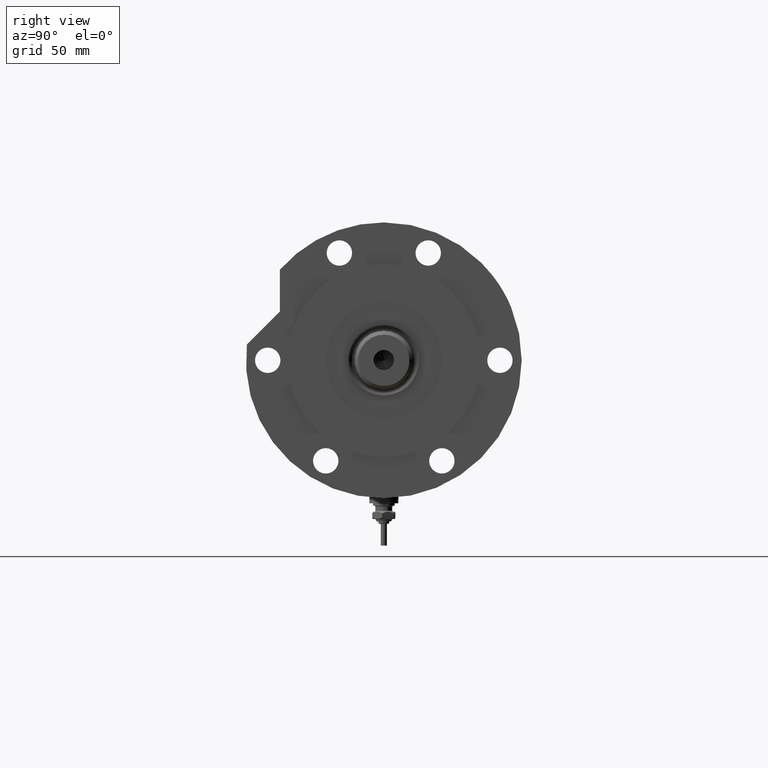
[diagram: clean part render]
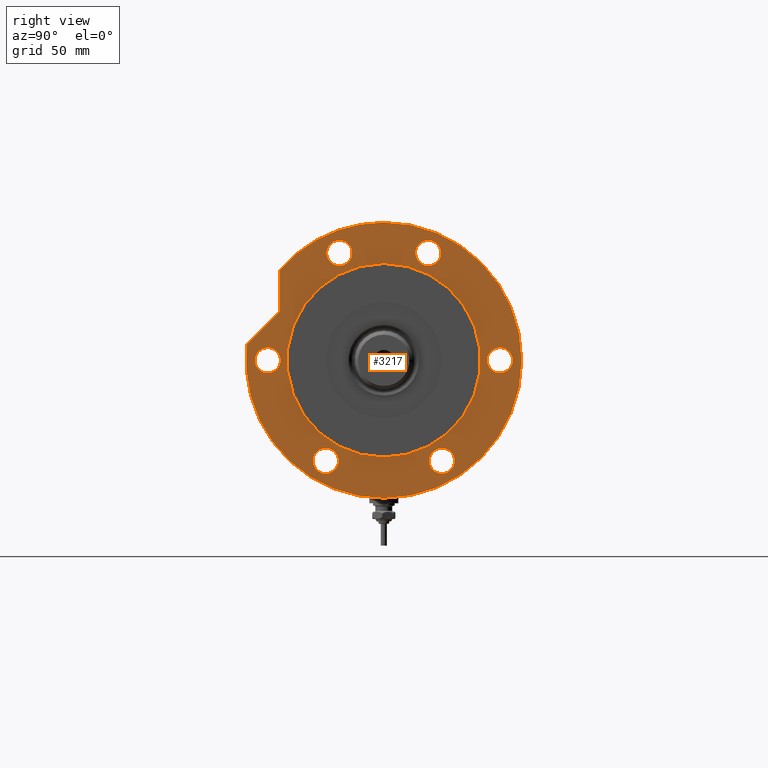
[diagram: same view with one face highlighted and labeled with its STEP entity id]
A machine part, right view. The second image highlights one B-rep face of the part: STEP entity #3217.
In plain terms, the highlighted planar face has unit normal (1, 0, -0).
Its self-contained STEP definition (entity closure, byte-faithful):
#89 = CARTESIAN_POINT ( 'NONE',  ( -36.31921938165294961, -24.00000000000018829, 19.00000000000000000 ) ) ;
#108 = CIRCLE ( 'NONE', #3038, 40.00000000000000000 ) ;
#134 = EDGE_CURVE ( 'NONE', #5050, #7023, #6805, .T. ) ;
#275 = EDGE_CURVE ( 'NONE', #4535, #4326, #2030, .T. ) ;
#392 = ORIENTED_EDGE ( 'NONE', *, *, #1581, .F. ) ;
#419 = FACE_BOUND ( 'NONE', #4949, .T. ) ;
#465 = AXIS2_PLACEMENT_3D ( 'NONE', #6807, #3348, #6289 ) ;
#471 = CARTESIAN_POINT ( 'NONE',  ( -41.56921938165310593, 23.99999999999990408, 19.00000000000000000 ) ) ;
#504 = ORIENTED_EDGE ( 'NONE', *, *, #1051, .F. ) ;
#518 = EDGE_LOOP ( 'NONE', ( #5814, #3171 ) ) ;
#558 = CARTESIAN_POINT ( 'NONE',  ( -46.81921938165294961, -24.00000000000018829, 19.00000000000000000 ) ) ;
#560 = EDGE_CURVE ( 'NONE', #2677, #7450, #2501, .T. ) ;
#617 = DIRECTION ( 'NONE',  ( 0.000000000000000000, 0.000000000000000000, 1.000000000000000000 ) ) ;
#618 = AXIS2_PLACEMENT_3D ( 'NONE', #4163, #6086, #2118 ) ;
#624 = DIRECTION ( 'NONE',  ( 0.000000000000000000, 0.000000000000000000, 1.000000000000000000 ) ) ;
#647 = VERTEX_POINT ( 'NONE', #2236 ) ;
#726 = AXIS2_PLACEMENT_3D ( 'NONE', #1288, #617, #3630 ) ;
#824 = AXIS2_PLACEMENT_3D ( 'NONE', #6491, #4614, #6950 ) ;
#859 = ORIENTED_EDGE ( 'NONE', *, *, #560, .F. ) ;
#873 = CARTESIAN_POINT ( 'NONE',  ( 44.34621756054168173, 18.36880475352450048, 19.00000000000000000 ) ) ;
#1025 = EDGE_CURVE ( 'NONE', #4508, #2624, #6690, .T. ) ;
#1051 = EDGE_CURVE ( 'NONE', #7450, #2630, #3133, .T. ) ;
#1157 = DIRECTION ( 'NONE',  ( 1.000000000000000000, 0.000000000000000000, 0.000000000000000000 ) ) ;
#1288 = CARTESIAN_POINT ( 'NONE',  ( 0.000000000000000000, 0.000000000000000000, 19.00000000000000000 ) ) ;
#1437 = CARTESIAN_POINT ( 'NONE',  ( 31.59476718220863845, 31.59476718220895108, 19.00000000000000000 ) ) ;
#1465 = CARTESIAN_POINT ( 'NONE',  ( 0.000000000000000000, 0.000000000000000000, 19.00000000000000000 ) ) ;
#1569 = DIRECTION ( 'NONE',  ( 0.000000000000000000, 0.000000000000000000, 1.000000000000000000 ) ) ;
#1581 = EDGE_CURVE ( 'NONE', #6376, #6830, #6105, .T. ) ;
#1630 = CARTESIAN_POINT ( 'NONE',  ( -41.56921938165310593, 23.99999999999990408, 19.00000000000000000 ) ) ;
#1641 = DIRECTION ( 'NONE',  ( 0.000000000000000000, 0.000000000000000000, 1.000000000000000000 ) ) ;
#1647 = VERTEX_POINT ( 'NONE', #1691 ) ;
#1660 = EDGE_LOOP ( 'NONE', ( #1986, #7138 ) ) ;
#1673 = VECTOR ( 'NONE', #5469, 999.9999999999998863 ) ;
#1691 = CARTESIAN_POINT ( 'NONE',  ( -36.31921938165311303, 23.99999999999990408, 19.00000000000000000 ) ) ;
#1714 = AXIS2_PLACEMENT_3D ( 'NONE', #5893, #5297, #5851 ) ;
#1729 = ORIENTED_EDGE ( 'NONE', *, *, #3983, .T. ) ;
#1732 = FACE_OUTER_BOUND ( 'NONE', #2256, .T. ) ;
#1782 = VERTEX_POINT ( 'NONE', #3225 ) ;
#1830 = CARTESIAN_POINT ( 'NONE',  ( -46.81921938165310593, 23.99999999999990408, 19.00000000000000000 ) ) ;
#1883 = CARTESIAN_POINT ( 'NONE',  ( 0.000000000000000000, 0.000000000000000000, 19.00000000000000000 ) ) ;
#1950 = CIRCLE ( 'NONE', #6844, 5.249999999999998224 ) ;
#1984 = CARTESIAN_POINT ( 'NONE',  ( 39.09621756054168173, 18.36880475352450048, 19.00000000000000000 ) ) ;
#1986 = ORIENTED_EDGE ( 'NONE', *, *, #7214, .F. ) ;
#2030 = CIRCLE ( 'NONE', #3011, 40.00000000000000000 ) ;
#2096 = EDGE_CURVE ( 'NONE', #1782, #2839, #5247, .T. ) ;
#2118 = DIRECTION ( 'NONE',  ( 1.000000000000000000, 0.000000000000000000, 0.000000000000000000 ) ) ;
#2131 = CARTESIAN_POINT ( 'NONE',  ( 6.569366352211361004, 56.62016801220598694, 19.00000000000000000 ) ) ;
#2141 = CARTESIAN_POINT ( 'NONE',  ( 0.000000000000000000, 0.000000000000000000, 19.00000000000000000 ) ) ;
#2197 = VERTEX_POINT ( 'NONE', #1830 ) ;
#2236 = CARTESIAN_POINT ( 'NONE',  ( 49.59621756054168173, 18.36880475352450048, 19.00000000000000000 ) ) ;
#2256 = EDGE_LOOP ( 'NONE', ( #504, #859, #6872, #1729, #7349 ) ) ;
#2261 = EDGE_CURVE ( 'NONE', #4326, #4535, #108, .T. ) ;
#2272 = DIRECTION ( 'NONE',  ( 0.000000000000000000, 0.000000000000000000, 1.000000000000000000 ) ) ;
#2283 = EDGE_LOOP ( 'NONE', ( #2967, #5335 ) ) ;
#2308 = CARTESIAN_POINT ( 'NONE',  ( -41.56921938165294961, -24.00000000000018829, 19.00000000000000000 ) ) ;
#2342 = DIRECTION ( 'NONE',  ( 1.000000000000000000, 0.000000000000000000, 0.000000000000000000 ) ) ;
#2397 = DIRECTION ( 'NONE',  ( 1.000000000000000000, 0.000000000000000000, 0.000000000000000000 ) ) ;
#2406 = CIRCLE ( 'NONE', #3148, 5.249999999999998224 ) ;
#2439 = AXIS2_PLACEMENT_3D ( 'NONE', #1630, #2272, #6974 ) ;
#2474 = DIRECTION ( 'NONE',  ( 0.000000000000000000, 0.000000000000000000, 1.000000000000000000 ) ) ;
#2501 = LINE ( 'NONE', #1437, #1673 ) ;
#2544 = DIRECTION ( 'NONE',  ( 1.000000000000000000, 0.000000000000000000, 0.000000000000000000 ) ) ;
#2624 = VERTEX_POINT ( 'NONE', #5524 ) ;
#2630 = VERTEX_POINT ( 'NONE', #4645 ) ;
#2636 = DIRECTION ( 'NONE',  ( 1.000000000000000000, 0.000000000000000000, 0.000000000000000000 ) ) ;
#2657 = CIRCLE ( 'NONE', #2785, 5.249999999999997335 ) ;
#2677 = VERTEX_POINT ( 'NONE', #2131 ) ;
#2699 = CARTESIAN_POINT ( 'NONE',  ( 44.34621756054168173, -18.36880475352450048, 19.00000000000000000 ) ) ;
#2701 = DIRECTION ( 'NONE',  ( 0.000000000000000000, 0.000000000000000000, 1.000000000000000000 ) ) ;
#2785 = AXIS2_PLACEMENT_3D ( 'NONE', #873, #7352, #6848 ) ;
#2787 = CARTESIAN_POINT ( 'NONE',  ( 44.34621756054168173, 18.36880475352450048, 19.00000000000000000 ) ) ;
#2822 = EDGE_CURVE ( 'NONE', #647, #6165, #2657, .T. ) ;
#2839 = VERTEX_POINT ( 'NONE', #5227 ) ;
#2967 = ORIENTED_EDGE ( 'NONE', *, *, #2096, .F. ) ;
#3011 = AXIS2_PLACEMENT_3D ( 'NONE', #4483, #1641, #6412 ) ;
#3038 = AXIS2_PLACEMENT_3D ( 'NONE', #1465, #4239, #3662 ) ;
#3130 = CARTESIAN_POINT ( 'NONE',  ( 0.000000000000000000, 48.00000000000000000, 19.00000000000000000 ) ) ;
#3132 = AXIS2_PLACEMENT_3D ( 'NONE', #2308, #4671, #1157 ) ;
#3133 = LINE ( 'NONE', #3719, #6219 ) ;
#3148 = AXIS2_PLACEMENT_3D ( 'NONE', #3130, #7361, #2544 ) ;
#3171 = ORIENTED_EDGE ( 'NONE', *, *, #3644, .F. ) ;
#3217 = ADVANCED_FACE ( 'NONE', ( #5691, #3945, #7403, #5146, #4576, #6870, #1732, #419 ), #4031, .T. ) ;
#3225 = CARTESIAN_POINT ( 'NONE',  ( -5.249999999999998224, 48.00000000000000000, 19.00000000000000000 ) ) ;
#3266 = AXIS2_PLACEMENT_3D ( 'NONE', #471, #624, #2342 ) ;
#3348 = DIRECTION ( 'NONE',  ( 0.000000000000000000, 0.000000000000000000, 1.000000000000000000 ) ) ;
#3409 = AXIS2_PLACEMENT_3D ( 'NONE', #2141, #6905, #4486 ) ;
#3487 = EDGE_LOOP ( 'NONE', ( #5246, #7378 ) ) ;
#3493 = ORIENTED_EDGE ( 'NONE', *, *, #2261, .F. ) ;
#3499 = CARTESIAN_POINT ( 'NONE',  ( 57.00000000000000000, 6.980486755139912911E-15, 19.00000000000000000 ) ) ;
#3630 = DIRECTION ( 'NONE',  ( 1.000000000000000000, 0.000000000000000000, 0.000000000000000000 ) ) ;
#3644 = EDGE_CURVE ( 'NONE', #1647, #2197, #5995, .T. ) ;
#3662 = DIRECTION ( 'NONE',  ( 1.000000000000000000, 0.000000000000000000, 0.000000000000000000 ) ) ;
#3669 = CARTESIAN_POINT ( 'NONE',  ( 20.20945616129993283, 42.98007820311755012, 19.00000000000000000 ) ) ;
#3719 = CARTESIAN_POINT ( 'NONE',  ( 0.000000000000000000, 42.98007820311755012, 19.00000000000000000 ) ) ;
#3773 = AXIS2_PLACEMENT_3D ( 'NONE', #2699, #3950, #6910 ) ;
#3807 = CARTESIAN_POINT ( 'NONE',  ( -57.00000000000000000, 0.000000000000000000, 19.00000000000000000 ) ) ;
#3901 = CIRCLE ( 'NONE', #5757, 57.00000000000000000 ) ;
#3918 = CIRCLE ( 'NONE', #618, 57.00000000000000000 ) ;
#3945 = FACE_BOUND ( 'NONE', #1660, .T. ) ;
#3950 = DIRECTION ( 'NONE',  ( 0.000000000000000000, 0.000000000000000000, 1.000000000000000000 ) ) ;
#3983 = EDGE_CURVE ( 'NONE', #6843, #4684, #3901, .T. ) ;
#4031 = PLANE ( 'NONE',  #3409 ) ;
#4038 = EDGE_CURVE ( 'NONE', #2677, #6843, #7210, .T. ) ;
#4163 = CARTESIAN_POINT ( 'NONE',  ( 0.000000000000000000, 0.000000000000000000, 19.00000000000000000 ) ) ;
#4239 = DIRECTION ( 'NONE',  ( 0.000000000000000000, 0.000000000000000000, 1.000000000000000000 ) ) ;
#4296 = EDGE_LOOP ( 'NONE', ( #4737, #392 ) ) ;
#4326 = VERTEX_POINT ( 'NONE', #5762 ) ;
#4483 = CARTESIAN_POINT ( 'NONE',  ( 0.000000000000000000, 0.000000000000000000, 19.00000000000000000 ) ) ;
#4486 = DIRECTION ( 'NONE',  ( 1.000000000000000000, 0.000000000000000000, -0.000000000000000000 ) ) ;
#4508 = VERTEX_POINT ( 'NONE', #6318 ) ;
#4535 = VERTEX_POINT ( 'NONE', #7468 ) ;
#4576 = FACE_BOUND ( 'NONE', #3487, .T. ) ;
#4579 = DIRECTION ( 'NONE',  ( 1.000000000000000000, 0.000000000000000000, 0.000000000000000000 ) ) ;
#4614 = DIRECTION ( 'NONE',  ( 0.000000000000000000, 0.000000000000000000, 1.000000000000000000 ) ) ;
#4645 = CARTESIAN_POINT ( 'NONE',  ( 37.43945616129992970, 42.98007820311755012, 19.00000000000000000 ) ) ;
#4671 = DIRECTION ( 'NONE',  ( 0.000000000000000000, 0.000000000000000000, 1.000000000000000000 ) ) ;
#4684 = VERTEX_POINT ( 'NONE', #3499 ) ;
#4737 = ORIENTED_EDGE ( 'NONE', *, *, #5516, .F. ) ;
#4867 = CARTESIAN_POINT ( 'NONE',  ( 39.09621756054168173, -18.36880475352450048, 19.00000000000000000 ) ) ;
#4873 = CIRCLE ( 'NONE', #465, 5.249999999999997335 ) ;
#4949 = EDGE_LOOP ( 'NONE', ( #6416, #3493 ) ) ;
#5002 = EDGE_LOOP ( 'NONE', ( #5564, #7033 ) ) ;
#5010 = CARTESIAN_POINT ( 'NONE',  ( 0.000000000000000000, -48.00000000000000000, 19.00000000000000000 ) ) ;
#5050 = VERTEX_POINT ( 'NONE', #558 ) ;
#5125 = AXIS2_PLACEMENT_3D ( 'NONE', #7408, #1569, #4579 ) ;
#5146 = FACE_BOUND ( 'NONE', #5002, .T. ) ;
#5222 = CARTESIAN_POINT ( 'NONE',  ( 49.59621756054168173, -18.36880475352450048, 19.00000000000000000 ) ) ;
#5227 = CARTESIAN_POINT ( 'NONE',  ( 5.249999999999998224, 48.00000000000000000, 19.00000000000000000 ) ) ;
#5246 = ORIENTED_EDGE ( 'NONE', *, *, #134, .F. ) ;
#5247 = CIRCLE ( 'NONE', #5125, 5.249999999999998224 ) ;
#5272 = AXIS2_PLACEMENT_3D ( 'NONE', #2787, #2701, #7494 ) ;
#5297 = DIRECTION ( 'NONE',  ( 0.000000000000000000, 0.000000000000000000, 1.000000000000000000 ) ) ;
#5335 = ORIENTED_EDGE ( 'NONE', *, *, #5390, .F. ) ;
#5368 = DIRECTION ( 'NONE',  ( 1.000000000000000000, 0.000000000000000000, -0.000000000000000000 ) ) ;
#5390 = EDGE_CURVE ( 'NONE', #2839, #1782, #2406, .T. ) ;
#5469 = DIRECTION ( 'NONE',  ( 0.7071067811865510144, -0.7071067811865441310, 0.000000000000000000 ) ) ;
#5516 = EDGE_CURVE ( 'NONE', #6830, #6376, #4873, .T. ) ;
#5524 = CARTESIAN_POINT ( 'NONE',  ( -5.249999999999998224, -48.00000000000000000, 19.00000000000000000 ) ) ;
#5564 = ORIENTED_EDGE ( 'NONE', *, *, #5946, .F. ) ;
#5691 = FACE_BOUND ( 'NONE', #2283, .T. ) ;
#5757 = AXIS2_PLACEMENT_3D ( 'NONE', #1883, #2474, #2397 ) ;
#5762 = CARTESIAN_POINT ( 'NONE',  ( 40.00000000000000000, 4.898587196589413026E-15, 19.00000000000000000 ) ) ;
#5776 = CIRCLE ( 'NONE', #2439, 5.249999999999997335 ) ;
#5814 = ORIENTED_EDGE ( 'NONE', *, *, #7390, .F. ) ;
#5851 = DIRECTION ( 'NONE',  ( 1.000000000000000000, 0.000000000000000000, 0.000000000000000000 ) ) ;
#5893 = CARTESIAN_POINT ( 'NONE',  ( -41.56921938165294961, -24.00000000000018829, 19.00000000000000000 ) ) ;
#5894 = CIRCLE ( 'NONE', #1714, 5.249999999999997335 ) ;
#5946 = EDGE_CURVE ( 'NONE', #2624, #4508, #1950, .T. ) ;
#5995 = CIRCLE ( 'NONE', #3266, 5.249999999999997335 ) ;
#6061 = DIRECTION ( 'NONE',  ( 0.000000000000000000, 0.000000000000000000, 1.000000000000000000 ) ) ;
#6086 = DIRECTION ( 'NONE',  ( 0.000000000000000000, 0.000000000000000000, 1.000000000000000000 ) ) ;
#6105 = CIRCLE ( 'NONE', #3773, 5.249999999999997335 ) ;
#6165 = VERTEX_POINT ( 'NONE', #1984 ) ;
#6219 = VECTOR ( 'NONE', #5368, 1000.000000000000000 ) ;
#6289 = DIRECTION ( 'NONE',  ( 1.000000000000000000, 0.000000000000000000, 0.000000000000000000 ) ) ;
#6318 = CARTESIAN_POINT ( 'NONE',  ( 5.249999999999998224, -48.00000000000000000, 19.00000000000000000 ) ) ;
#6376 = VERTEX_POINT ( 'NONE', #5222 ) ;
#6412 = DIRECTION ( 'NONE',  ( 1.000000000000000000, 0.000000000000000000, 0.000000000000000000 ) ) ;
#6416 = ORIENTED_EDGE ( 'NONE', *, *, #275, .F. ) ;
#6491 = CARTESIAN_POINT ( 'NONE',  ( 0.000000000000000000, -48.00000000000000000, 19.00000000000000000 ) ) ;
#6690 = CIRCLE ( 'NONE', #824, 5.249999999999998224 ) ;
#6751 = EDGE_CURVE ( 'NONE', #7023, #5050, #5894, .T. ) ;
#6805 = CIRCLE ( 'NONE', #3132, 5.249999999999997335 ) ;
#6807 = CARTESIAN_POINT ( 'NONE',  ( 44.34621756054168173, -18.36880475352450048, 19.00000000000000000 ) ) ;
#6830 = VERTEX_POINT ( 'NONE', #4867 ) ;
#6843 = VERTEX_POINT ( 'NONE', #3807 ) ;
#6844 = AXIS2_PLACEMENT_3D ( 'NONE', #5010, #6061, #2636 ) ;
#6848 = DIRECTION ( 'NONE',  ( 1.000000000000000000, 0.000000000000000000, 0.000000000000000000 ) ) ;
#6870 = FACE_BOUND ( 'NONE', #518, .T. ) ;
#6872 = ORIENTED_EDGE ( 'NONE', *, *, #4038, .T. ) ;
#6905 = DIRECTION ( 'NONE',  ( 0.000000000000000000, 0.000000000000000000, 1.000000000000000000 ) ) ;
#6910 = DIRECTION ( 'NONE',  ( 1.000000000000000000, 0.000000000000000000, 0.000000000000000000 ) ) ;
#6950 = DIRECTION ( 'NONE',  ( 1.000000000000000000, 0.000000000000000000, 0.000000000000000000 ) ) ;
#6974 = DIRECTION ( 'NONE',  ( 1.000000000000000000, 0.000000000000000000, 0.000000000000000000 ) ) ;
#7023 = VERTEX_POINT ( 'NONE', #89 ) ;
#7033 = ORIENTED_EDGE ( 'NONE', *, *, #1025, .F. ) ;
#7138 = ORIENTED_EDGE ( 'NONE', *, *, #2822, .F. ) ;
#7210 = CIRCLE ( 'NONE', #726, 57.00000000000000000 ) ;
#7214 = EDGE_CURVE ( 'NONE', #6165, #647, #7480, .T. ) ;
#7349 = ORIENTED_EDGE ( 'NONE', *, *, #7543, .T. ) ;
#7352 = DIRECTION ( 'NONE',  ( 0.000000000000000000, 0.000000000000000000, 1.000000000000000000 ) ) ;
#7361 = DIRECTION ( 'NONE',  ( 0.000000000000000000, 0.000000000000000000, 1.000000000000000000 ) ) ;
#7378 = ORIENTED_EDGE ( 'NONE', *, *, #6751, .F. ) ;
#7390 = EDGE_CURVE ( 'NONE', #2197, #1647, #5776, .T. ) ;
#7403 = FACE_BOUND ( 'NONE', #4296, .T. ) ;
#7408 = CARTESIAN_POINT ( 'NONE',  ( 0.000000000000000000, 48.00000000000000000, 19.00000000000000000 ) ) ;
#7450 = VERTEX_POINT ( 'NONE', #3669 ) ;
#7468 = CARTESIAN_POINT ( 'NONE',  ( -40.00000000000000000, 0.000000000000000000, 19.00000000000000000 ) ) ;
#7480 = CIRCLE ( 'NONE', #5272, 5.249999999999997335 ) ;
#7494 = DIRECTION ( 'NONE',  ( 1.000000000000000000, 0.000000000000000000, 0.000000000000000000 ) ) ;
#7543 = EDGE_CURVE ( 'NONE', #4684, #2630, #3918, .T. ) ;